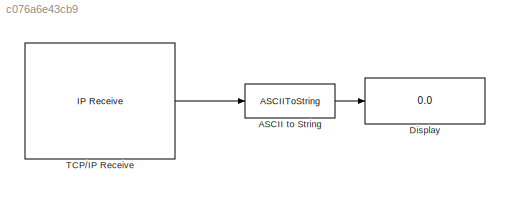
MODEL slx_c076a6e43cb9
KIND model
CONFIG AbsTol = auto
CONFIG EnableMultiTasking = off
CONFIG FixedStep = auto
CONFIG MaxStep = auto
CONFIG MinStep = auto
CONFIG RelTol = 1e-3
CONFIG SampleTimeConstraint = Unconstrained
CONFIG Solver = VariableStepAuto
CONFIG SolverName = VariableStepAuto
CONFIG StartTime = 0.0
CONFIG StopTime = 10.0
BLOCK [ASCIIToString] ASCII to String
BLOCK [Display] Display
  Decimation = 1
  Ports = [1]
BLOCK [Reference] TCP//IP Receive  REF=instrumentlib/TCP//IP Receive
  Ports = [0, 1]
  SourceBlock = instrumentlib/TCP//IP Receive
  SourceProductBaseCode = IC
  SourceProductName = Instrument Control Toolbox
  SourceType = TCP/IP Receive
LINE ASCII to String:1 -> Display:1
LINE TCP//IP Receive:1 -> ASCII to String:1
